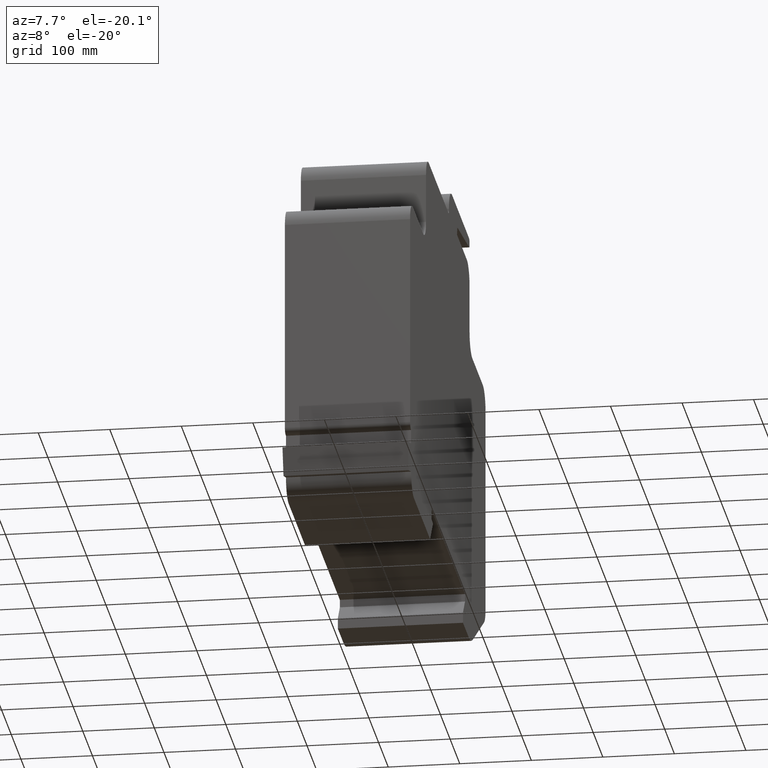
[diagram: clean part render]
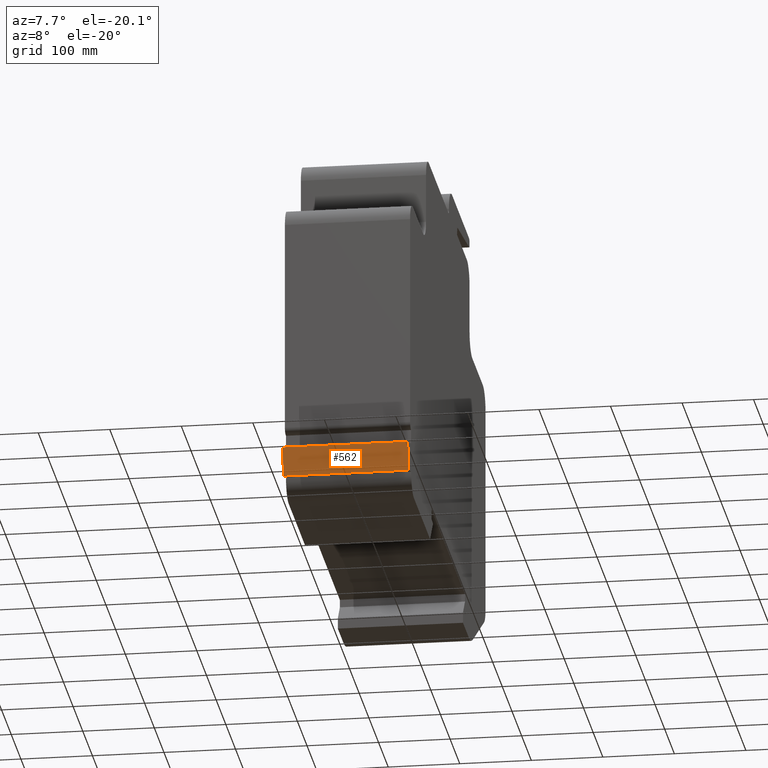
[diagram: same view with one face highlighted and labeled with its STEP entity id]
A machine part, auxiliary view. The second image highlights one B-rep face of the part: STEP entity #562.
In plain terms, the highlighted planar face has unit normal (0, -0.9635, -0.2676).
Its self-contained STEP definition (entity closure, byte-faithful):
#506=CARTESIAN_POINT('',(175.00000000000028,-582.49424544860267,-28.540716385189526));
#507=VERTEX_POINT('',#506);
#514=CARTESIAN_POINT('',(0.0,-582.49424544860267,-28.540716385189526));
#515=VERTEX_POINT('',#514);
#516=CARTESIAN_POINT('',(0.0,-582.49424544860267,-28.540716385189526));
#517=DIRECTION('',(1.0,0.0,0.0));
#518=VECTOR('',#517,175.00000000000028);
#519=LINE('',#516,#518);
#520=EDGE_CURVE('',#515,#507,#519,.T.);
#532=CARTESIAN_POINT('',(0.0,-582.49424544860267,-28.540716385189526));
#533=DIRECTION('',(0.0,-0.963517909629902,-0.267643863786234));
#534=DIRECTION('',(0.0,0.267643863786234,-0.963517909629902));
#535=AXIS2_PLACEMENT_3D('',#532,#533,#534);
#536=PLANE('',#535);
#537=CARTESIAN_POINT('',(175.00000000000028,-593.20000000004075,9.999999999966299));
#538=VERTEX_POINT('',#537);
#539=CARTESIAN_POINT('',(175.00000000000028,-582.49424544860267,-28.540716385189526));
#540=DIRECTION('',(0.0,-0.267643863786234,0.963517909629902));
#541=VECTOR('',#540,39.999999999958227);
#542=LINE('',#539,#541);
#543=EDGE_CURVE('',#507,#538,#542,.T.);
#544=ORIENTED_EDGE('',*,*,#543,.T.);
#545=CARTESIAN_POINT('',(0.0,-593.20000000004075,9.999999999966299));
#546=VERTEX_POINT('',#545);
#547=CARTESIAN_POINT('',(0.0,-593.20000000004075,9.999999999966299));
#548=DIRECTION('',(1.0,0.0,0.0));
#549=VECTOR('',#548,175.00000000000028);
#550=LINE('',#547,#549);
#551=EDGE_CURVE('',#546,#538,#550,.T.);
#552=ORIENTED_EDGE('',*,*,#551,.F.);
#553=CARTESIAN_POINT('',(0.0,-582.49424544860267,-28.540716385189526));
#554=DIRECTION('',(0.0,-0.267643863786234,0.963517909629902));
#555=VECTOR('',#554,39.999999999958227);
#556=LINE('',#553,#555);
#557=EDGE_CURVE('',#515,#546,#556,.T.);
#558=ORIENTED_EDGE('',*,*,#557,.F.);
#559=ORIENTED_EDGE('',*,*,#520,.T.);
#560=EDGE_LOOP('',(#544,#552,#558,#559));
#561=FACE_OUTER_BOUND('',#560,.T.);
#562=ADVANCED_FACE('',(#561),#536,.T.);